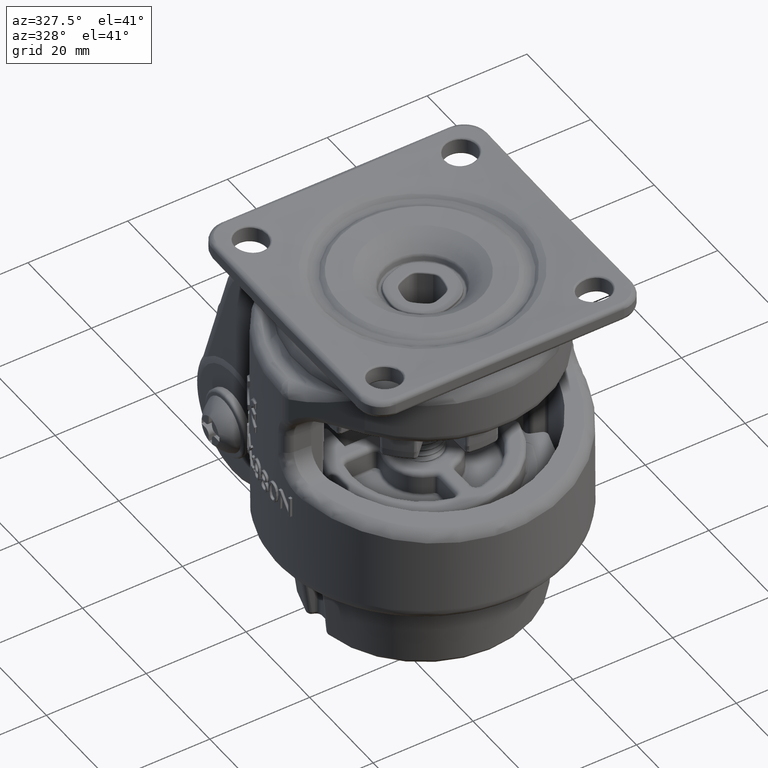
[diagram: clean part render]
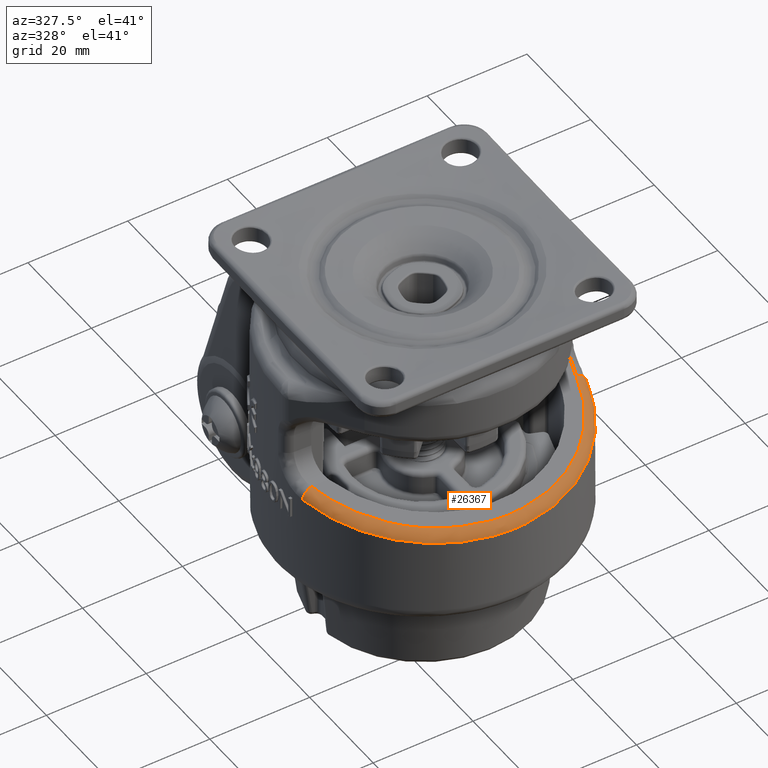
[diagram: same view with one face highlighted and labeled with its STEP entity id]
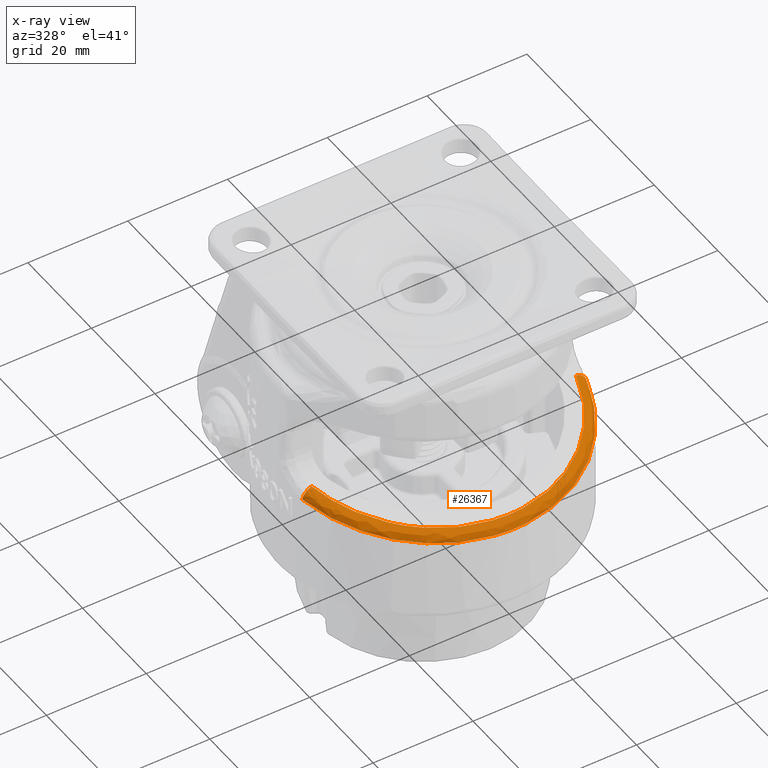
[diagram: x-ray of the same camera — body ghosted, the highlighted face saturated]
A machine part, auxiliary view. The second image highlights one B-rep face of the part: STEP entity #26367.
The next image is the same camera in x-ray: the body ghosted, the highlighted face saturated — about 0% of this face is hidden behind the body in this view.
In plain terms, the highlighted face is a freeform B-spline surface patch.
Its self-contained STEP definition (entity closure, byte-faithful):
#465=(
BOUNDED_SURFACE()
B_SPLINE_SURFACE(3,2,((#66376,#66377,#66378),(#66379,#66380,#66381),(#66382,
#66383,#66384),(#66385,#66386,#66387),(#66388,#66389,#66390),(#66391,#66392,
#66393),(#66394,#66395,#66396),(#66397,#66398,#66399),(#66400,#66401,#66402),
(#66403,#66404,#66405),(#66406,#66407,#66408),(#66409,#66410,#66411),(#66412,
#66413,#66414),(#66415,#66416,#66417),(#66418,#66419,#66420),(#66421,#66422,
#66423),(#66424,#66425,#66426),(#66427,#66428,#66429)),.UNSPECIFIED.,.F.,
 .F.,.F.)
B_SPLINE_SURFACE_WITH_KNOTS((4,2,2,2,2,2,2,2,4),(3,3),(-0.00868149721989765,
0.125,0.25,0.375,0.5,0.625,0.75,0.875,1.0086814972199),(-0.00868149721988858,
1.),.UNSPECIFIED.)
GEOMETRIC_REPRESENTATION_ITEM()
RATIONAL_B_SPLINE_SURFACE(((1.00492670524516,0.71625255872506,1.),(1.00481583085266,
0.722638231016818,1.),(1.00471092666969,0.728680056540482,1.),(1.00453062605567,
0.739064245433904,1.),(1.00445380477483,0.743488671249939,1.),(1.00432794028859,
0.750737679286525,1.),(1.00427890434513,0.753561843265285,1.),(1.00421302549531,
0.75735605342015,1.),(1.00419618552225,0.758325930656486,1.),(1.00419618552225,
0.758325930656486,1.),(1.00421302549532,0.75735605341947,1.),(1.00427890434512,
0.753561843265965,1.),(1.00432794028857,0.750737679287889,1.),(1.00445380477485,
0.743488671248575,1.),(1.00453062605566,0.739064245434246,1.),(1.00471092666969,
0.728680056540116,1.),(1.00481583085266,0.722638231017165,1.),(1.00492670524516,
0.716252558724992,1.)))
REPRESENTATION_ITEM('')
SURFACE()
);
#1085=ELLIPSE('',#28103,29.566706763226,29.25);
#1326=ELLIPSE('',#28666,27.5896746777231,27.25);
#6815=FACE_OUTER_BOUND('',#8523,.T.);
#8523=EDGE_LOOP('',(#14394,#14395,#14396,#14397));
#14394=ORIENTED_EDGE('',*,*,#19946,.T.);
#14395=ORIENTED_EDGE('',*,*,#19990,.F.);
#14396=ORIENTED_EDGE('',*,*,#18520,.T.);
#14397=ORIENTED_EDGE('',*,*,#19991,.T.);
#18520=EDGE_CURVE('',#22163,#22162,#1085,.T.);
#19946=EDGE_CURVE('',#23126,#23127,#1326,.T.);
#19990=EDGE_CURVE('',#22163,#23127,#24695,.T.);
#19991=EDGE_CURVE('',#22162,#23126,#24696,.T.);
#22162=VERTEX_POINT('',#44595);
#22163=VERTEX_POINT('',#44602);
#23126=VERTEX_POINT('',#65786);
#23127=VERTEX_POINT('',#65788);
#24695=CIRCLE('',#28691,2.);
#24696=CIRCLE('',#28692,2.);
#26367=ADVANCED_FACE('',(#6815),#465,.T.);
#28103=AXIS2_PLACEMENT_3D('',#44603,#32174,#32175);
#28666=AXIS2_PLACEMENT_3D('',#65790,#33585,#33586);
#28691=AXIS2_PLACEMENT_3D('',#66430,#33646,#33647);
#28692=AXIS2_PLACEMENT_3D('',#66431,#33648,#33649);
#32174=DIRECTION('center_axis',(0.,-0.145974187568688,0.989288399084747));
#32175=DIRECTION('ref_axis',(0.,-0.989288399084747,-0.145974187568688));
#33585=DIRECTION('center_axis',(0.,0.156434465040228,-0.987688340595138));
#33586=DIRECTION('ref_axis',(0.,-0.987688340595138,-0.156434465040228));
#33646=DIRECTION('center_axis',(-0.231113172585415,0.960948529349257,0.152199295001667));
#33647=DIRECTION('ref_axis',(-0.972275712520566,-0.233837419680054,-1.87350135405495E-16));
#33648=DIRECTION('center_axis',(-0.231113172585415,-0.960948529349257,-0.152199295001667));
#33649=DIRECTION('ref_axis',(0.972275712520566,-0.233837419680054,-1.04083408558608E-16));
#44595=CARTESIAN_POINT('',(39.4657661800634,-13.636519660311,-15.6136425050878));
#44602=CARTESIAN_POINT('',(-17.4123630023897,-13.636519660311,-15.6136425050878));
#44603=CARTESIAN_POINT('Origin',(11.0267015888369,-6.79677513466949,-14.6044058141172));
#65786=CARTESIAN_POINT('',(37.5212147550223,-13.4817137510314,-13.6382658238976));
#65788=CARTESIAN_POINT('',(-15.4678115773485,-13.4817137510314,-13.6382658238976));
#65790=CARTESIAN_POINT('Origin',(11.0267015888369,-7.10964406474994,-12.6290291329269));
#66376=CARTESIAN_POINT('Ctrl Pts',(37.6381524933419,-12.8609444036523,-13.5400924672814));
#66377=CARTESIAN_POINT('Ctrl Pts',(39.5532573618354,-13.268412998428,-13.5807497385462));
#66378=CARTESIAN_POINT('Ctrl Pts',(39.6165703928236,-12.9755447726717,-15.5161125306983));
#66379=CARTESIAN_POINT('Ctrl Pts',(36.9548226525192,-16.0277139400202,-14.0416567409199));
#66380=CARTESIAN_POINT('Ctrl Pts',(38.7939287512988,-16.619742716618,-14.112200510197));
#66381=CARTESIAN_POINT('Ctrl Pts',(38.8823022883233,-16.377245363083,-16.0180495598779));
#66382=CARTESIAN_POINT('Ctrl Pts',(35.6995289255253,-19.0685954344911,-14.5232824155868));
#66383=CARTESIAN_POINT('Ctrl Pts',(37.4274995510347,-19.8643462393399,-14.6267081009441));
#66384=CARTESIAN_POINT('Ctrl Pts',(37.5335892403051,-19.6441150651678,-16.5000916530593));
#66385=CARTESIAN_POINT('Ctrl Pts',(32.3193438619887,-24.3461647300559,-15.3591626934252));
#66386=CARTESIAN_POINT('Ctrl Pts',(33.7694880815223,-25.4699585935743,-15.5155867883541));
#66387=CARTESIAN_POINT('Ctrl Pts',(33.9018646428438,-25.31365251133,-17.3366587485158));
#66388=CARTESIAN_POINT('Ctrl Pts',(30.2568610120251,-26.6207561773317,-15.7194206115892));
#66389=CARTESIAN_POINT('Ctrl Pts',(31.5527454266568,-27.8870736137286,-15.8988567321637));
#66390=CARTESIAN_POINT('Ctrl Pts',(31.6860113499611,-27.7572320171774,-17.697220474957));
#66391=CARTESIAN_POINT('Ctrl Pts',(25.4996134111213,-30.3698675465647,-16.3132182613352));
#66392=CARTESIAN_POINT('Ctrl Pts',(26.4590459857372,-31.8515437742653,-16.5274742058766));
#66393=CARTESIAN_POINT('Ctrl Pts',(26.5751250521216,-31.7846594055703,-18.2914864560052));
#66394=CARTESIAN_POINT('Ctrl Pts',(22.8058748387292,-31.8434273503417,-16.5466059259858));
#66395=CARTESIAN_POINT('Ctrl Pts',(23.5789818457187,-33.4137521279454,-16.7751772371241));
#66396=CARTESIAN_POINT('Ctrl Pts',(23.6811426305582,-33.3676794183246,-18.5250685544883));
#66397=CARTESIAN_POINT('Ctrl Pts',(17.0830128614255,-33.8274545024705,-16.8608432323297));
#66398=CARTESIAN_POINT('Ctrl Pts',(17.4798829202213,-35.5067840138611,-17.1070457603058));
#66399=CARTESIAN_POINT('Ctrl Pts',(17.5330544049598,-35.4989563333465,-18.8395485549008));
#66400=CARTESIAN_POINT('Ctrl Pts',(14.055215629754,-34.3373961324258,-16.9416096088748));
#66401=CARTESIAN_POINT('Ctrl Pts',(14.2497747158322,-36.0467751346695,-17.1926650007739));
#66402=CARTESIAN_POINT('Ctrl Pts',(14.2802123894419,-36.0467751346695,-18.9203818129608));
#66403=CARTESIAN_POINT('Ctrl Pts',(7.99818754791967,-34.3373961324258,-16.9416096088748));
#66404=CARTESIAN_POINT('Ctrl Pts',(7.80362846184146,-36.0467751346695,-17.1926650007739));
#66405=CARTESIAN_POINT('Ctrl Pts',(7.7731907882317,-36.0467751346695,-18.9203818129608));
#66406=CARTESIAN_POINT('Ctrl Pts',(4.9703903162537,-33.827454502461,-16.8608432323281));
#66407=CARTESIAN_POINT('Ctrl Pts',(4.57352025746253,-35.5067840138621,-17.1070457603164));
#66408=CARTESIAN_POINT('Ctrl Pts',(4.52034877272269,-35.4989563333495,-18.8395485549061));
#66409=CARTESIAN_POINT('Ctrl Pts',(-0.752471661060498,-31.8434273503513,
-16.5466059259875));
#66410=CARTESIAN_POINT('Ctrl Pts',(-1.52557866804921,-33.4137521279465,
-16.7751772371136));
#66411=CARTESIAN_POINT('Ctrl Pts',(-1.62773945289284,-33.3676794183217,
-18.525068554483));
#66412=CARTESIAN_POINT('Ctrl Pts',(-3.44621023343693,-30.3698675465742,
-16.3132182613367));
#66413=CARTESIAN_POINT('Ctrl Pts',(-4.40564280805493,-31.8515437742616,
-16.5274742058814));
#66414=CARTESIAN_POINT('Ctrl Pts',(-4.52172187443462,-31.7846594055807,
-18.2914864559999));
#66415=CARTESIAN_POINT('Ctrl Pts',(-8.20345783436187,-26.6207561773222,
-15.7194206115876));
#66416=CARTESIAN_POINT('Ctrl Pts',(-9.49934224900098,-27.887073613725,-15.8988567321577));
#66417=CARTESIAN_POINT('Ctrl Pts',(-9.63260817230063,-27.7572320171669,
-17.6972204749623));
#66418=CARTESIAN_POINT('Ctrl Pts',(-10.2659406843202,-24.346164730056,-15.3591626934253));
#66419=CARTESIAN_POINT('Ctrl Pts',(-11.7160849038492,-25.4699585935678,
-15.5155867883512));
#66420=CARTESIAN_POINT('Ctrl Pts',(-11.8484614651722,-25.3136525113265,
-17.3366587485158));
#66421=CARTESIAN_POINT('Ctrl Pts',(-13.6461257478457,-19.0685954344911,
-14.5232824155868));
#66422=CARTESIAN_POINT('Ctrl Pts',(-15.3740963733617,-19.8643462393443,
-14.6267081009468));
#66423=CARTESIAN_POINT('Ctrl Pts',(-15.4801860626288,-19.6441150651717,
-16.5000916530593));
#66424=CARTESIAN_POINT('Ctrl Pts',(-14.9014194748156,-16.027713940012,-14.0416567409181));
#66425=CARTESIAN_POINT('Ctrl Pts',(-16.7405255735475,-16.6197427165842,
-14.112200510245));
#66426=CARTESIAN_POINT('Ctrl Pts',(-16.8288991106505,-16.3772453630793,
-16.0180495598746));
#66427=CARTESIAN_POINT('Ctrl Pts',(-15.5847493156744,-12.860944403654,-13.5400924672818));
#66428=CARTESIAN_POINT('Ctrl Pts',(-17.4998541841779,-13.2684129984347,
-13.5807497385359));
#66429=CARTESIAN_POINT('Ctrl Pts',(-17.5631672151498,-12.9755447726724,
-15.516112530699));
#66430=CARTESIAN_POINT('Origin',(-15.4678115773485,-13.1688448209509,-15.6136425050878));
#66431=CARTESIAN_POINT('Origin',(37.5212147550223,-13.1688448209509,-15.6136425050878));